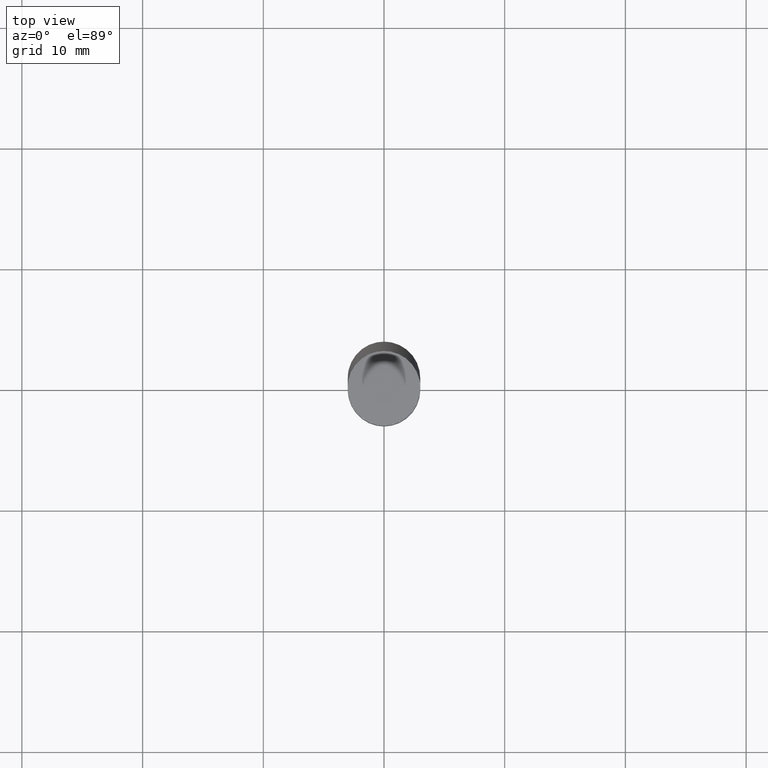
[diagram: clean part render]
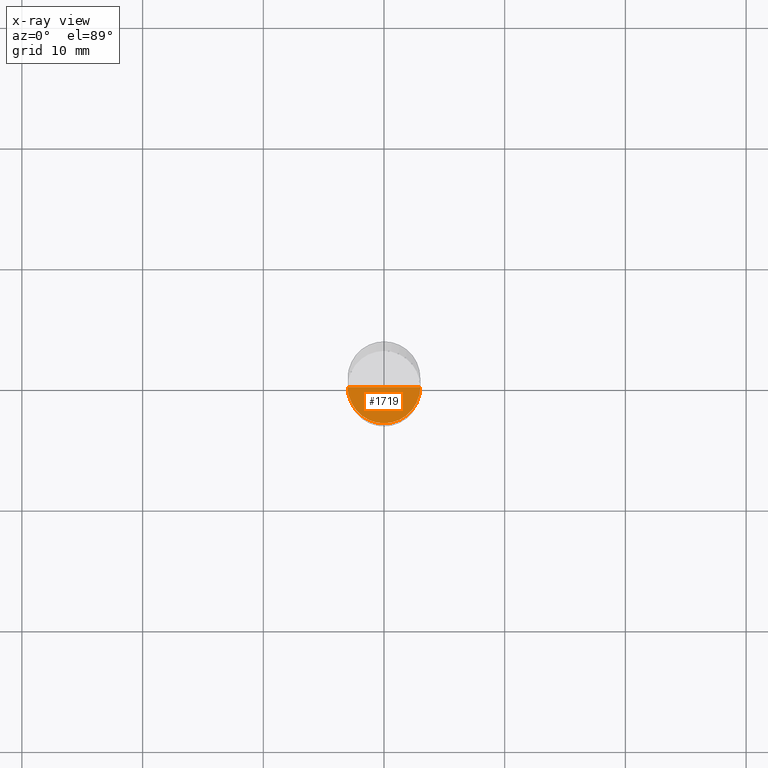
[diagram: x-ray — body ghosted, one internal face saturated and labeled with its STEP entity id]
A machine part, top view, then the same camera in x-ray: the body is ghosted and one INTERNAL B-rep face — a face not visible from any outside direction — is saturated and labeled: STEP entity #1719.
In plain terms, the highlighted face is a freeform B-spline surface patch.
Its self-contained STEP definition (entity closure, byte-faithful):
#1526=CARTESIAN_POINT('',(3.0,0.0,0.0));
#1530=CARTESIAN_POINT('',(-3.0,0.0,0.0));
#1531=CARTESIAN_POINT('',(0.0,0.0,0.0));
#1547=CARTESIAN_POINT('',(-3.0,-3.0,0.0));
#1548=CARTESIAN_POINT('',(0.0,-3.0,0.0));
#1549=CARTESIAN_POINT('',(3.0,-3.0,0.0));
#1704=(
BOUNDED_SURFACE()
B_SPLINE_SURFACE(1,2,(
(#1530,#1547,#1548,#1549,#1526),
(#1531,#1531,#1531,#1531,#1531)
), .UNSPECIFIED.,.F.,.F.,.F.)
B_SPLINE_SURFACE_WITH_KNOTS((2,2),(3,2,3),(
0.0,1.0),(
0.0,0.5,1.0), .UNSPECIFIED.)
GEOMETRIC_REPRESENTATION_ITEM()
RATIONAL_B_SPLINE_SURFACE(((1.0,0.707106781187,1.0,0.707106781187,1.0),
(1.0,0.707106781187,1.0,0.707106781187,1.0)
))
REPRESENTATION_ITEM('')
SURFACE()
);
#1705=(
BOUNDED_CURVE()
B_SPLINE_CURVE(1,(#1531,#1526),.UNSPECIFIED.,.F.,.F.)
B_SPLINE_CURVE_WITH_KNOTS((2,2),
(0.0,1.0),.UNSPECIFIED.)
CURVE()
GEOMETRIC_REPRESENTATION_ITEM()
RATIONAL_B_SPLINE_CURVE((1.0,1.0))
REPRESENTATION_ITEM('')
);
#1706=(
BOUNDED_CURVE()
B_SPLINE_CURVE(2,(#1526,#1549,#1548,#1547,#1530),.UNSPECIFIED.,.F.,.F.)
B_SPLINE_CURVE_WITH_KNOTS((3,2,3),
(0.0,0.5,1.0),.UNSPECIFIED.)
CURVE()
GEOMETRIC_REPRESENTATION_ITEM()
RATIONAL_B_SPLINE_CURVE((1.0,0.707106781187,1.0,0.707106781187,1.0))
REPRESENTATION_ITEM('')
);
#1707=(
BOUNDED_CURVE()
B_SPLINE_CURVE(1,(#1530,#1531),.UNSPECIFIED.,.F.,.F.)
B_SPLINE_CURVE_WITH_KNOTS((2,2),
(0.0,1.0),.UNSPECIFIED.)
CURVE()
GEOMETRIC_REPRESENTATION_ITEM()
RATIONAL_B_SPLINE_CURVE((1.0,1.0))
REPRESENTATION_ITEM('')
);
#1708=VERTEX_POINT('',#1526);
#1709=VERTEX_POINT('',#1530);
#1710=VERTEX_POINT('',#1531);
#1711=EDGE_CURVE('',#1710,#1708,#1705,.T.);
#1712=EDGE_CURVE('',#1708,#1709,#1706,.T.);
#1713=EDGE_CURVE('',#1709,#1710,#1707,.T.);
#1714=ORIENTED_EDGE('',*,*,#1711,.T.);
#1715=ORIENTED_EDGE('',*,*,#1712,.T.);
#1716=ORIENTED_EDGE('',*,*,#1713,.T.);
#1717=EDGE_LOOP('',(#1714,#1715,#1716));
#1718=FACE_OUTER_BOUND('',#1717,.T.);
#1719=ADVANCED_FACE('',(#1718),#1704,.T.);